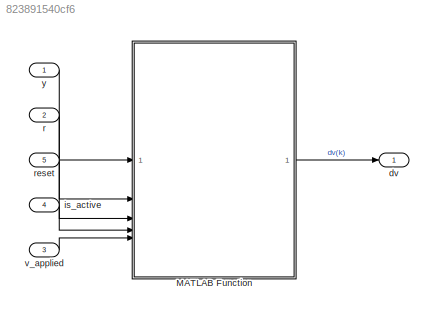
MODEL slx_823891540cf6
KIND model
CONFIG AbsTol = auto
CONFIG EnableMultiTasking = off
CONFIG FixedStep = auto
CONFIG MaxStep = auto
CONFIG MinStep = auto
CONFIG RelTol = 1e-3
CONFIG SampleTimeConstraint = Unconstrained
CONFIG SolverName = FixedStepAuto
CONFIG StartTime = 0.0
CONFIG StopTime = 10.0
WORKSPACE source: mxarray member
WORKSPACE A = [1 0 0 0 1 0 0 0 1 -2.78422176125 0 0 ... (36 elements, 3x3x4)]
WORKSPACE B = [6.47260197817e-05 -1.35552330409e-07 -1.20182984776e-05 -2.60434458743e-06 8.10418384413e-05 6.40496097285e-06 -6.59385895388e-08 -3.51972281269e-06 9.96689132672e-05 7.53449244746e-05 8.6225207076e-07 -6.07513787911e-06 ... (54 elements, 3x3x6)]
WORKSPACE C = [1 0 0 0 1 0 0 0 1]
WORKSPACE N1 = 1
WORKSPACE N2 = 70
WORKSPACE Nu = 20
WORKSPACE alpha = 0.5
WORKSPACE lam = [40 40 40]
WORKSPACE solve_when_inactive = 0
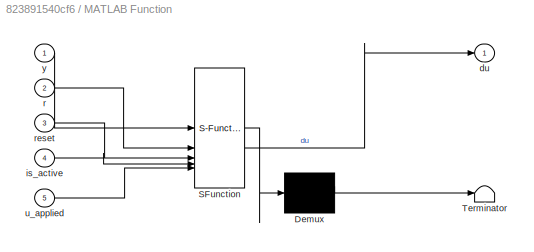
BLOCK [SubSystem] MATLAB Function
  ErrorFcn = Stateflow.Translate.translate
  PermitHierarchicalResolution = ExplicitOnly
  SFBlockType = MATLAB Function
  SystemSampleTime = Ts_ctrl
  TreatAsAtomicUnit = on
BLOCK [Demux] MATLAB Function/ Demux 
  Outputs = 1
BLOCK [S-Function] MATLAB Function/ SFunction 
  EnableBusSupport = off
  FunctionName = sf_sfun
  Parameters = A,B,C,N1,N2,Nu,alpha,lam,solve_when_inactive
  PortCounts = [5 2]
  SFcnIsStateOwnerBlock = off
  SFunctionDeploymentMode = off
  Tag = Stateflow S-Function 2
BLOCK [Terminator] MATLAB Function/ Terminator 
BLOCK [Outport] MATLAB Function/du
BLOCK [Inport] MATLAB Function/is_active
  Port = 4
BLOCK [Inport] MATLAB Function/r
  Port = 2
BLOCK [Inport] MATLAB Function/reset
  Port = 3
BLOCK [Inport] MATLAB Function/u_applied
  Port = 5
BLOCK [Inport] MATLAB Function/y
BLOCK [Outport] dv
  NameLocation = right
BLOCK [Inport] is_active
  NameLocation = left
  Port = 4
BLOCK [Inport] r
  NameLocation = left
  Port = 2
BLOCK [Inport] reset
  NameLocation = left
  Port = 5
BLOCK [Inport] v_applied
  NameLocation = left
  Port = 3
BLOCK [Inport] y
  NameLocation = left
LINE MATLAB Function:1 -> dv:1
LINE is_active:1 -> MATLAB Function:4
LINE r:1 -> MATLAB Function:2
LINE reset:1 -> MATLAB Function:3
LINE v_applied:1 -> MATLAB Function:5
LINE y:1 -> MATLAB Function:1
CHART MATLAB Function states=1 transitions=1
  STATE_LABEL 'eML_blk_kernel()'
  STATE_LABEL 'SCRIPT:\nfunction du = gpc_step(y, r, A, B, N1, N2, Nu, alpha, lam, reset, C, is_active, u_applied, solve_when_inactive)\n%GPC_STEP  One-step 3x3 GPC move for a CARIMA model with activity-aware tracking.\n%   du = gpc_step(y, r, A, B, N1, N2, Nu, alpha, lam, reset, C)\n%   du = gpc_step(..., is_active, u_applied)\n%   du = gpc_step(..., is_active, u_applied, solve_when_inactive)\n%\n%   This implementati...<+3608ch>'
CHART  states=0 transitions=0
